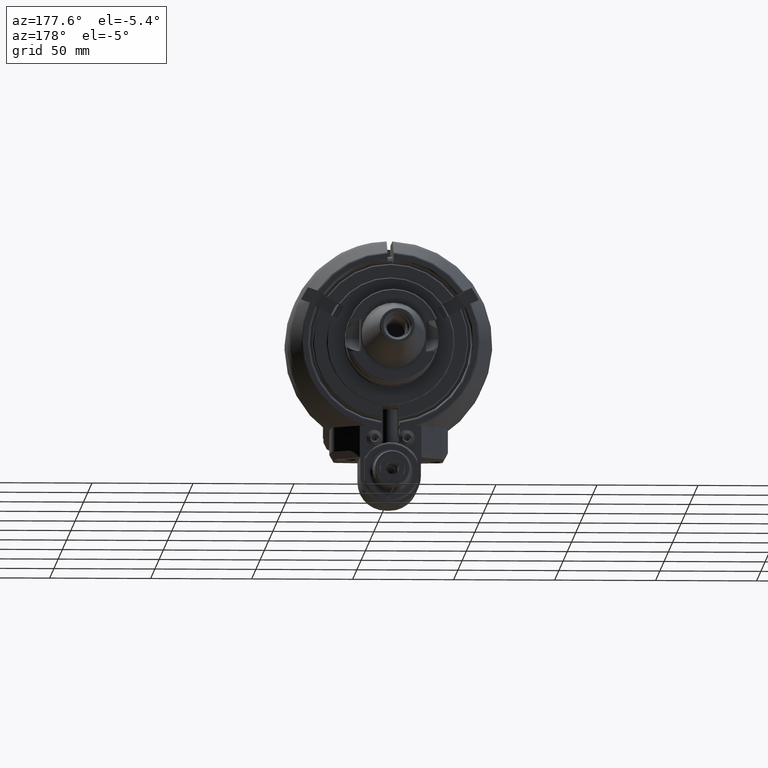
[diagram: clean part render]
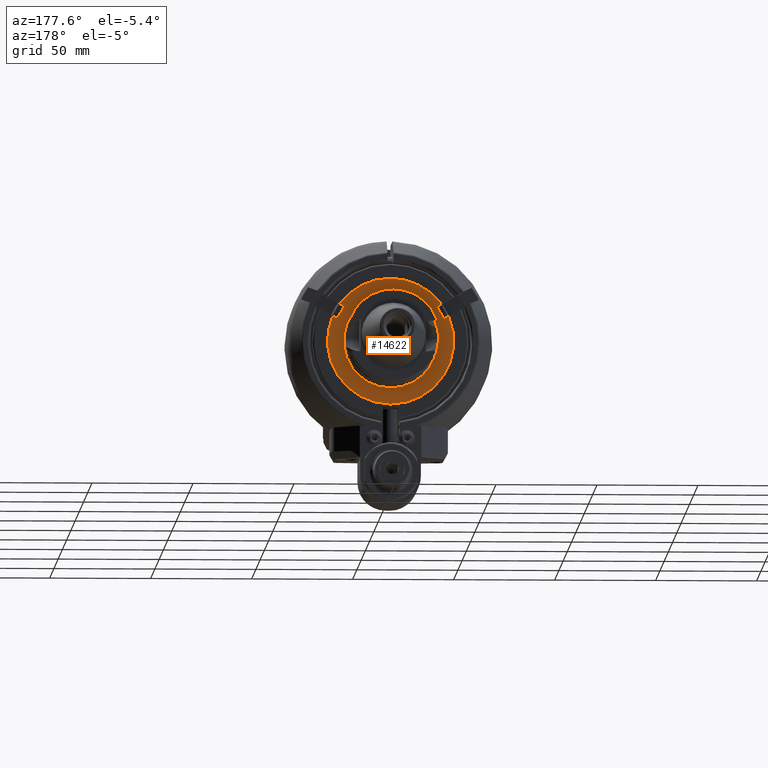
[diagram: same view with one face highlighted and labeled with its STEP entity id]
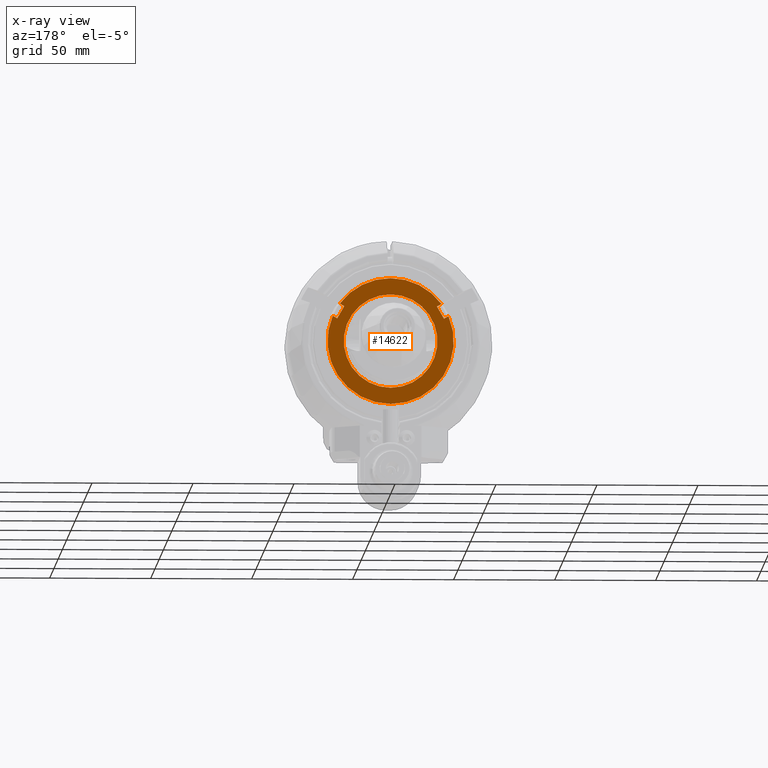
[diagram: x-ray of the same camera — body ghosted, the highlighted face saturated]
A machine part, auxiliary view. The second image highlights one B-rep face of the part: STEP entity #14622.
The next image is the same camera in x-ray: the body ghosted, the highlighted face saturated — about 0% of this face is hidden behind the body in this view.
In plain terms, the highlighted planar face has unit normal (0, 1, 0).
Its self-contained STEP definition (entity closure, byte-faithful):
#953=FACE_BOUND('',#3259,.T.);
#1451=CIRCLE('',#15975,23.2);
#1452=CIRCLE('',#15977,31.25);
#1453=CIRCLE('',#15978,31.25);
#2326=FACE_OUTER_BOUND('',#3258,.T.);
#3258=EDGE_LOOP('',(#12015,#12016,#12017,#12018,#12019,#12020,#12021,#12022));
#3259=EDGE_LOOP('',(#12023));
#4380=LINE('',#24597,#5436);
#4381=LINE('',#24599,#5437);
#4382=LINE('',#24601,#5438);
#4383=LINE('',#24605,#5439);
#4384=LINE('',#24607,#5440);
#4385=LINE('',#24608,#5441);
#5436=VECTOR('',#19155,2.55338145838491);
#5437=VECTOR('',#19156,6.99999999999977);
#5438=VECTOR('',#19157,2.55338145838491);
#5439=VECTOR('',#19160,2.55338145838491);
#5440=VECTOR('',#19161,6.99999999999977);
#5441=VECTOR('',#19162,2.55338145838491);
#6752=VERTEX_POINT('',#24589);
#6753=VERTEX_POINT('',#24593);
#6754=VERTEX_POINT('',#24594);
#6755=VERTEX_POINT('',#24596);
#6756=VERTEX_POINT('',#24598);
#6757=VERTEX_POINT('',#24600);
#6758=VERTEX_POINT('',#24602);
#6759=VERTEX_POINT('',#24604);
#6760=VERTEX_POINT('',#24606);
#8607=EDGE_CURVE('',#6752,#6752,#1451,.T.);
#8608=EDGE_CURVE('',#6753,#6754,#1452,.T.);
#8609=EDGE_CURVE('',#6754,#6755,#4380,.T.);
#8610=EDGE_CURVE('',#6755,#6756,#4381,.T.);
#8611=EDGE_CURVE('',#6756,#6757,#4382,.T.);
#8612=EDGE_CURVE('',#6757,#6758,#1453,.T.);
#8613=EDGE_CURVE('',#6758,#6759,#4383,.T.);
#8614=EDGE_CURVE('',#6759,#6760,#4384,.T.);
#8615=EDGE_CURVE('',#6760,#6753,#4385,.T.);
#12015=ORIENTED_EDGE('',*,*,#8608,.T.);
#12016=ORIENTED_EDGE('',*,*,#8609,.T.);
#12017=ORIENTED_EDGE('',*,*,#8610,.T.);
#12018=ORIENTED_EDGE('',*,*,#8611,.T.);
#12019=ORIENTED_EDGE('',*,*,#8612,.T.);
#12020=ORIENTED_EDGE('',*,*,#8613,.T.);
#12021=ORIENTED_EDGE('',*,*,#8614,.T.);
#12022=ORIENTED_EDGE('',*,*,#8615,.T.);
#12023=ORIENTED_EDGE('',*,*,#8607,.T.);
#14014=PLANE('',#15976);
#14622=ADVANCED_FACE('',(#2326,#953),#14014,.T.);
#15975=AXIS2_PLACEMENT_3D('',#24591,#19149,#19150);
#15976=AXIS2_PLACEMENT_3D('',#24592,#19151,#19152);
#15977=AXIS2_PLACEMENT_3D('',#24595,#19153,#19154);
#15978=AXIS2_PLACEMENT_3D('',#24603,#19158,#19159);
#19149=DIRECTION('center_axis',(0.,-1.,0.));
#19150=DIRECTION('ref_axis',(-1.,0.,0.));
#19151=DIRECTION('center_axis',(0.,1.,0.));
#19152=DIRECTION('ref_axis',(-1.,0.,0.));
#19153=DIRECTION('center_axis',(0.,1.,0.));
#19154=DIRECTION('ref_axis',(0.916576550923867,0.,0.399859258110286));
#19155=DIRECTION('',(0.866025403784429,0.,-0.500000000000017));
#19156=DIRECTION('',(0.500000000000017,0.,0.866025403784429));
#19157=DIRECTION('',(-0.866025403784429,0.,0.500000000000017));
#19158=DIRECTION('center_axis',(0.,1.,0.));
#19159=DIRECTION('ref_axis',(-0.804576550923883,0.,0.593848948557988));
#19160=DIRECTION('',(-0.866025403784429,0.,-0.500000000000017));
#19161=DIRECTION('',(0.500000000000017,0.,-0.866025403784429));
#19162=DIRECTION('',(0.866025403784429,0.,0.500000000000017));
#24589=CARTESIAN_POINT('',(-2.84118057402186E-15,39.5,-23.2));
#24591=CARTESIAN_POINT('Origin',(0.,39.5,0.));
#24592=CARTESIAN_POINT('Origin',(0.,39.5,0.));
#24593=CARTESIAN_POINT('',(28.64301721637,39.5,12.49560181595));
#24594=CARTESIAN_POINT('',(-28.64301721637,39.5,12.49560181595));
#24595=CARTESIAN_POINT('Origin',(0.,39.5,0.));
#24596=CARTESIAN_POINT('',(-26.43172400786,39.5,11.21891108675));
#24597=CARTESIAN_POINT('',(-28.64301721637,39.5,12.49560181595));
#24598=CARTESIAN_POINT('',(-22.93172400786,39.5,17.28108891325));
#24599=CARTESIAN_POINT('',(-26.43172400786,39.5,11.21891108675));
#24600=CARTESIAN_POINT('',(-25.14301721637,39.5,18.55777964244));
#24601=CARTESIAN_POINT('',(-22.93172400786,39.5,17.28108891325));
#24602=CARTESIAN_POINT('',(25.14301721637,39.5,18.55777964244));
#24603=CARTESIAN_POINT('Origin',(0.,39.5,0.));
#24604=CARTESIAN_POINT('',(22.93172400786,39.5,17.28108891325));
#24605=CARTESIAN_POINT('',(25.14301721637,39.5,18.55777964244));
#24606=CARTESIAN_POINT('',(26.43172400786,39.5,11.21891108675));
#24607=CARTESIAN_POINT('',(22.93172400786,39.5,17.28108891325));
#24608=CARTESIAN_POINT('',(26.43172400786,39.5,11.21891108675));